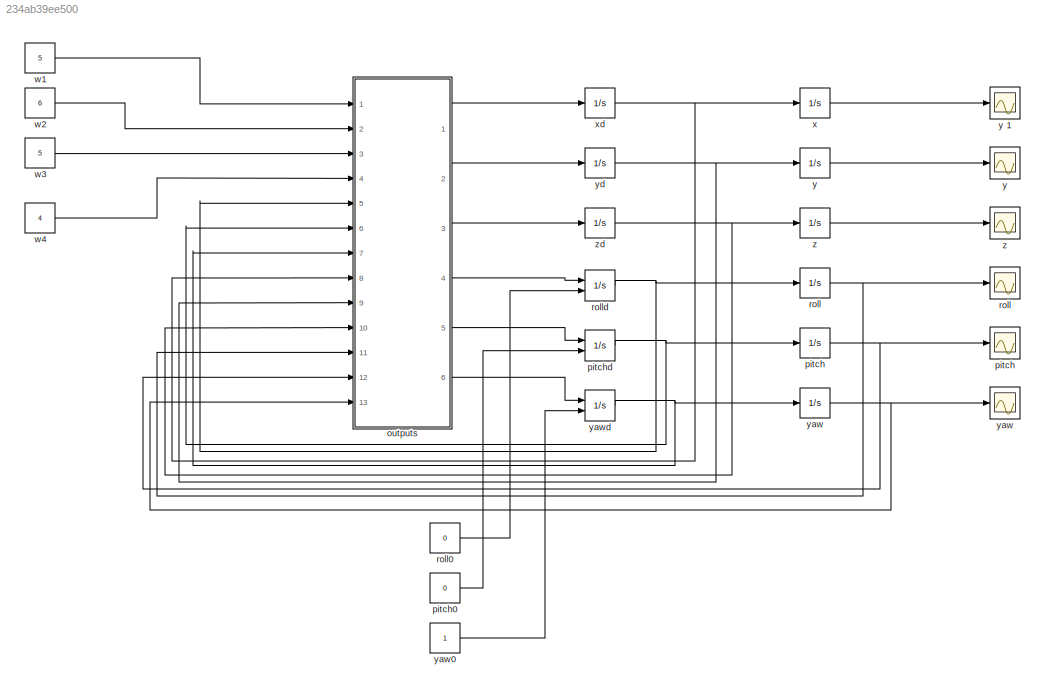
MODEL slx_234ab39ee500
KIND model
CONFIG AbsTol = auto
CONFIG FixedStep = auto
CONFIG MaxStep = auto
CONFIG MinStep = auto
CONFIG RelTol = 1e-3
CONFIG SampleTimeConstraint = Unconstrained
CONFIG Solver = ode45
CONFIG SolverMode = Auto
CONFIG SolverName = ode45
CONFIG StartTime = 0.0
CONFIG StopTime = 10.0
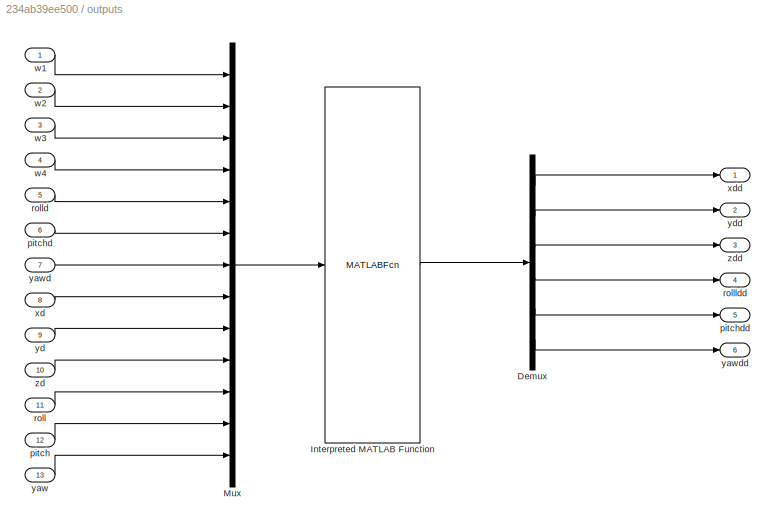
BLOCK [SubSystem] outputs
  Ports = [13, 6]
  RequestExecContextInheritance = off
BLOCK [Demux] outputs/Demux
  DisplayOption = bar
  Outputs = 6
  Ports = [1, 6]
BLOCK [MATLABFcn] outputs/Interpreted MATLAB Function
  MATLABFcn = Model.output
  OutputDimensions = 6
  Ports = [1, 1]
BLOCK [Mux] outputs/Mux
  DisplayOption = bar
  Inputs = 13
  Ports = [13, 1]
BLOCK [Inport] outputs/pitch
  IconDisplay = Port number
  Port = 12
BLOCK [Inport] outputs/pitchd 
  IconDisplay = Port number
  Port = 6
BLOCK [Outport] outputs/pitchdd
  IconDisplay = Port number
  Port = 5
BLOCK [Inport] outputs/roll
  IconDisplay = Port number
  Port = 11
BLOCK [Inport] outputs/rolld 
  IconDisplay = Port number
  Port = 5
BLOCK [Outport] outputs/rollldd
  IconDisplay = Port number
  Port = 4
BLOCK [Inport] outputs/w1 
  IconDisplay = Port number
BLOCK [Inport] outputs/w2 
  IconDisplay = Port number
  Port = 2
BLOCK [Inport] outputs/w3 
  IconDisplay = Port number
  Port = 3
BLOCK [Inport] outputs/w4 
  IconDisplay = Port number
  Port = 4
BLOCK [Inport] outputs/xd
  IconDisplay = Port number
  Port = 8
BLOCK [Outport] outputs/xdd 
  IconDisplay = Port number
BLOCK [Inport] outputs/yaw
  IconDisplay = Port number
  Port = 13
BLOCK [Inport] outputs/yawd
  IconDisplay = Port number
  Port = 7
BLOCK [Outport] outputs/yawdd
  IconDisplay = Port number
  Port = 6
BLOCK [Inport] outputs/yd
  IconDisplay = Port number
  Port = 9
BLOCK [Outport] outputs/ydd 
  IconDisplay = Port number
  Port = 2
BLOCK [Inport] outputs/zd
  IconDisplay = Port number
  Port = 10
BLOCK [Outport] outputs/zdd 
  IconDisplay = Port number
  Port = 3
BLOCK [Integrator] pitch
  Ports = [1, 1]
BLOCK [Scope] pitch 
  Floating = off
  NumInputPorts = 1
  Ports = [1]
  SaveName = ScopeData1
BLOCK [Constant] pitch0
  Value = 0
BLOCK [Integrator] pitchd
  InitialConditionSource = external
  Ports = [2, 1]
BLOCK [Integrator] roll
  Ports = [1, 1]
BLOCK [Scope] roll 
  Floating = off
  NumInputPorts = 1
  Ports = [1]
BLOCK [Constant] roll0
  Value = 0
BLOCK [Integrator] rolld
  InitialConditionSource = external
  Ports = [2, 1]
BLOCK [Constant] w1
  Value = 5
BLOCK [Constant] w2
  Value = 6
BLOCK [Constant] w3
  Value = 5
BLOCK [Constant] w4
  Value = 4
BLOCK [Integrator] x
  Ports = [1, 1]
BLOCK [Integrator] xd
  Ports = [1, 1]
BLOCK [Integrator] y
  Ports = [1, 1]
BLOCK [Scope] y 
  Floating = off
  NumInputPorts = 1
  Ports = [1]
  SaveName = ScopeData5
  TimeRange = 10
  YMax = 400
  YMin = 0
BLOCK [Scope] y 1
  Floating = off
  NumInputPorts = 1
  Ports = [1]
  SaveName = ScopeData6
  TimeRange = 10
  YMax = 400
  YMin = 0
BLOCK [Integrator] yaw
  Ports = [1, 1]
BLOCK [Scope] yaw 
  Floating = off
  NumInputPorts = 1
  Ports = [1]
  SaveName = ScopeData2
  YMax = 3.35
  YMin = 3.125
BLOCK [Constant] yaw0
BLOCK [Integrator] yawd
  InitialConditionSource = external
  Ports = [2, 1]
BLOCK [Integrator] yd
  Ports = [1, 1]
BLOCK [Integrator] z
  Ports = [1, 1]
BLOCK [Scope] z 
  Floating = off
  NumInputPorts = 1
  Ports = [1]
  SaveName = ScopeData3
  TimeRange = 10
  YMax = 8.3
  YMin = 7.7
BLOCK [Integrator] zd
  Ports = [1, 1]
LINE outputs/Demux:1 -> outputs/xdd :1
LINE outputs/Demux:2 -> outputs/ydd :1
LINE outputs/Demux:3 -> outputs/zdd :1
LINE outputs/Demux:4 -> outputs/rollldd:1
LINE outputs/Demux:5 -> outputs/pitchdd:1
LINE outputs/Demux:6 -> outputs/yawdd:1
LINE outputs/Interpreted MATLAB Function:1 -> outputs/Demux:1
LINE outputs/Mux:1 -> outputs/Interpreted MATLAB Function:1
LINE outputs/pitch:1 -> outputs/Mux:12
LINE outputs/pitchd :1 -> outputs/Mux:6
LINE outputs/roll:1 -> outputs/Mux:11
LINE outputs/rolld :1 -> outputs/Mux:5
LINE outputs/w1 :1 -> outputs/Mux:1
LINE outputs/w2 :1 -> outputs/Mux:2
LINE outputs/w3 :1 -> outputs/Mux:3
LINE outputs/w4 :1 -> outputs/Mux:4
LINE outputs/xd:1 -> outputs/Mux:8
LINE outputs/yaw:1 -> outputs/Mux:13
LINE outputs/yawd:1 -> outputs/Mux:7
LINE outputs/yd:1 -> outputs/Mux:9
LINE outputs/zd:1 -> outputs/Mux:10
LINE outputs:1 -> xd:1
LINE outputs:2 -> yd:1
LINE outputs:3 -> zd:1
LINE outputs:4 -> rolld:1
LINE outputs:5 -> pitchd:1
LINE outputs:6 -> yawd:1
LINE pitch0:1 -> pitchd:2
NET pitch:1 -> outputs:12, pitch :1
NET pitchd:1 -> outputs:6, pitch:1
LINE roll0:1 -> rolld:2
NET roll:1 -> outputs:11, roll :1
NET rolld:1 -> outputs:5, roll:1
LINE w1:1 -> outputs:1
LINE w2:1 -> outputs:2
LINE w3:1 -> outputs:3
LINE w4:1 -> outputs:4
LINE x:1 -> y 1:1
NET xd:1 -> outputs:8, x:1
LINE y:1 -> y :1
LINE yaw0:1 -> yawd:2
NET yaw:1 -> outputs:13, yaw :1
NET yawd:1 -> outputs:7, yaw:1
NET yd:1 -> outputs:9, y:1
LINE z:1 -> z :1
NET zd:1 -> outputs:10, z:1
note: NET lines group one-source signal fan-out (src -> all destinations, sorted); 1:1 wires keep LINE
